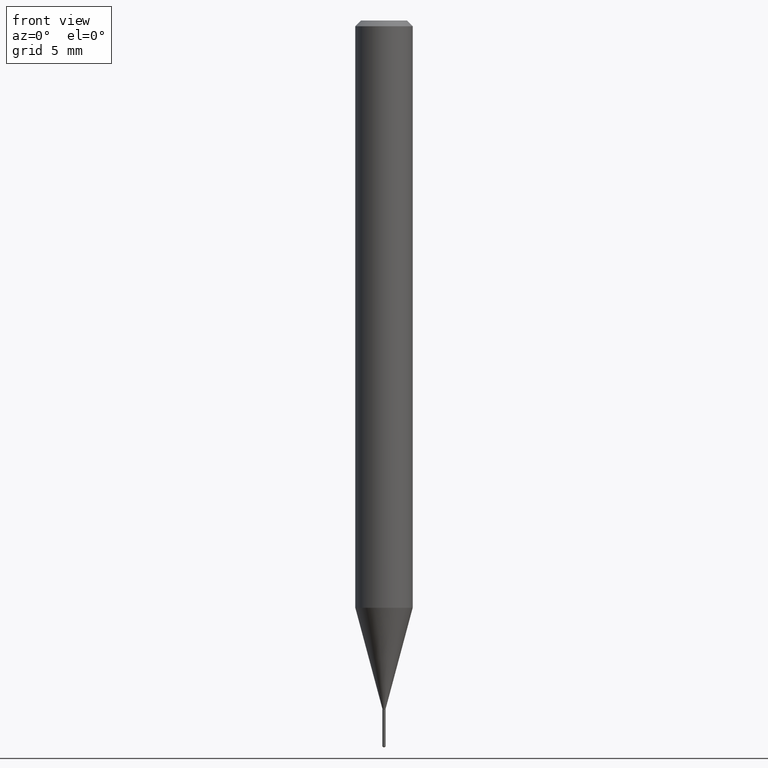
[diagram: clean part render]
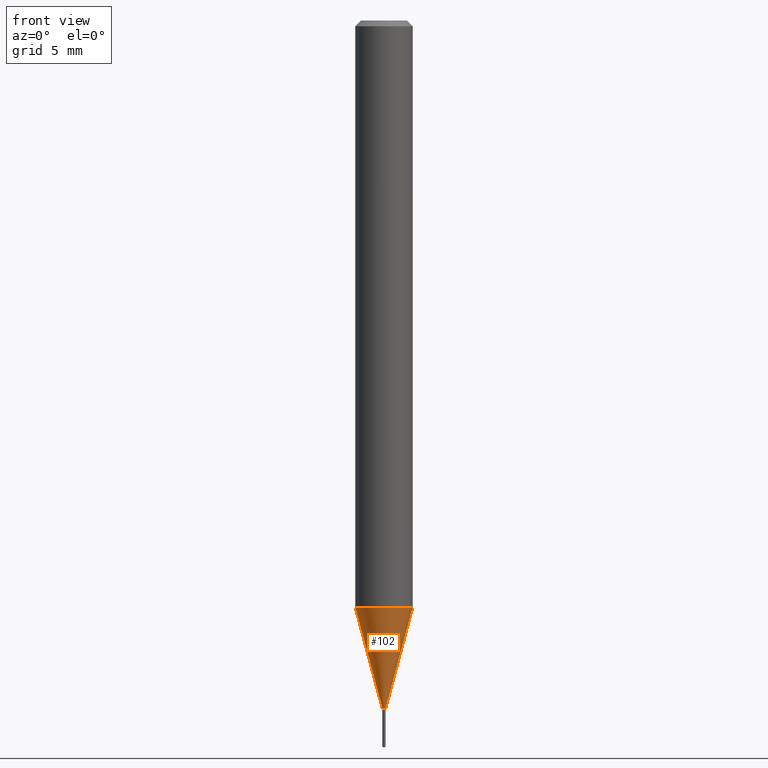
[diagram: same view with one face highlighted and labeled with its STEP entity id]
A machine part, front view. The second image highlights one B-rep face of the part: STEP entity #102.
In plain terms, the highlighted conical surface has half-angle 15 deg.
Its self-contained STEP definition (entity closure, byte-faithful):
#9 = CARTESIAN_POINT ( 'NONE',  ( 0.003350000000000000113, -4.968727093307679884E-15, -1.416399999999999881 ) ) ;
#12 = DIRECTION ( 'NONE',  ( -2.445468806185136597E-29, 3.491481338843145583E-15, 1.000000000000000000 ) ) ;
#37 = DIRECTION ( 'NONE',  ( 0.2588190451025212391, 1.565188264969622362E-15, 0.9659258262890679791 ) ) ;
#46 = VERTEX_POINT ( 'NONE', #303 ) ;
#78 = CARTESIAN_POINT ( 'NONE',  ( -0.05905000000000015792, -3.799966196582654549E-15, -1.208524770018413408 ) ) ;
#81 = VERTEX_POINT ( 'NONE', #237 ) ;
#98 = ORIENTED_EDGE ( 'NONE', *, *, #293, .T. ) ;
#102 = ADVANCED_FACE ( 'NONE', ( #488 ), #424, .T. ) ;
#105 = EDGE_CURVE ( 'NONE', #481, #81, #408, .T. ) ;
#125 = ORIENTED_EDGE ( 'NONE', *, *, #105, .T. ) ;
#138 = VECTOR ( 'NONE', #37, 39.37007874015748854 ) ;
#166 = DIRECTION ( 'NONE',  ( 1.000000000000000000, -6.982962677686172836E-15, 0.000000000000000000 ) ) ;
#172 = CIRCLE ( 'NONE', #443, 0.05905000000000015098 ) ;
#181 = AXIS2_PLACEMENT_3D ( 'NONE', #337, #12, #166 ) ;
#186 = VERTEX_POINT ( 'NONE', #78 ) ;
#203 = ORIENTED_EDGE ( 'NONE', *, *, #380, .F. ) ;
#207 = ORIENTED_EDGE ( 'NONE', *, *, #311, .F. ) ;
#209 = EDGE_LOOP ( 'NONE', ( #207, #98, #125, #203 ) ) ;
#237 = CARTESIAN_POINT ( 'NONE',  ( 0.05905000000000015792, -4.631885628166368963E-15, -1.208524770018413408 ) ) ;
#286 = DIRECTION ( 'NONE',  ( 1.000000000000000000, -6.982962677686262766E-15, 0.000000000000000000 ) ) ;
#290 = CIRCLE ( 'NONE', #181, 0.003350000000000000113 ) ;
#293 = EDGE_CURVE ( 'NONE', #46, #481, #290, .T. ) ;
#303 = CARTESIAN_POINT ( 'NONE',  ( -0.003350000000000000113, -4.922403857024178992E-15, -1.416399999999999881 ) ) ;
#311 = EDGE_CURVE ( 'NONE', #46, #186, #438, .T. ) ;
#317 = CARTESIAN_POINT ( 'NONE',  ( -0.003350000000000000113, -4.921530986689467846E-15, -1.416399999999999881 ) ) ;
#331 = DIRECTION ( 'NONE',  ( 1.000000000000000000, -6.982962677686172836E-15, 0.000000000000000000 ) ) ;
#337 = CARTESIAN_POINT ( 'NONE',  ( 3.463762017080627501E-29, -4.945334168337430947E-15, -1.416399999999999881 ) ) ;
#347 = AXIS2_PLACEMENT_3D ( 'NONE', #461, #457, #331 ) ;
#372 = CARTESIAN_POINT ( 'NONE',  ( 0.003350000000000000113, -4.968727093307679884E-15, -1.416399999999999881 ) ) ;
#380 = EDGE_CURVE ( 'NONE', #186, #81, #172, .T. ) ;
#391 = DIRECTION ( 'NONE',  ( -2.445468806185136597E-29, 3.491481338843145583E-15, 1.000000000000000000 ) ) ;
#399 = DIRECTION ( 'NONE',  ( -0.2588190451025212391, 5.211531920934549464E-15, 0.9659258262890679791 ) ) ;
#408 = LINE ( 'NONE', #372, #138 ) ;
#424 = CONICAL_SURFACE ( 'NONE', #347, 0.003350000000000000113, 0.2617993877991499629 ) ;
#430 = CARTESIAN_POINT ( 'NONE',  ( 2.955409626582096145E-29, -4.219541682048994042E-15, -1.208524770018413408 ) ) ;
#438 = LINE ( 'NONE', #317, #486 ) ;
#443 = AXIS2_PLACEMENT_3D ( 'NONE', #430, #391, #286 ) ;
#457 = DIRECTION ( 'NONE',  ( -2.445468806185136597E-29, 3.491481338843145583E-15, 1.000000000000000000 ) ) ;
#461 = CARTESIAN_POINT ( 'NONE',  ( 3.463762017080627501E-29, -4.945334168337430947E-15, -1.416399999999999881 ) ) ;
#481 = VERTEX_POINT ( 'NONE', #9 ) ;
#486 = VECTOR ( 'NONE', #399, 39.37007874015748854 ) ;
#488 = FACE_OUTER_BOUND ( 'NONE', #209, .T. ) ;